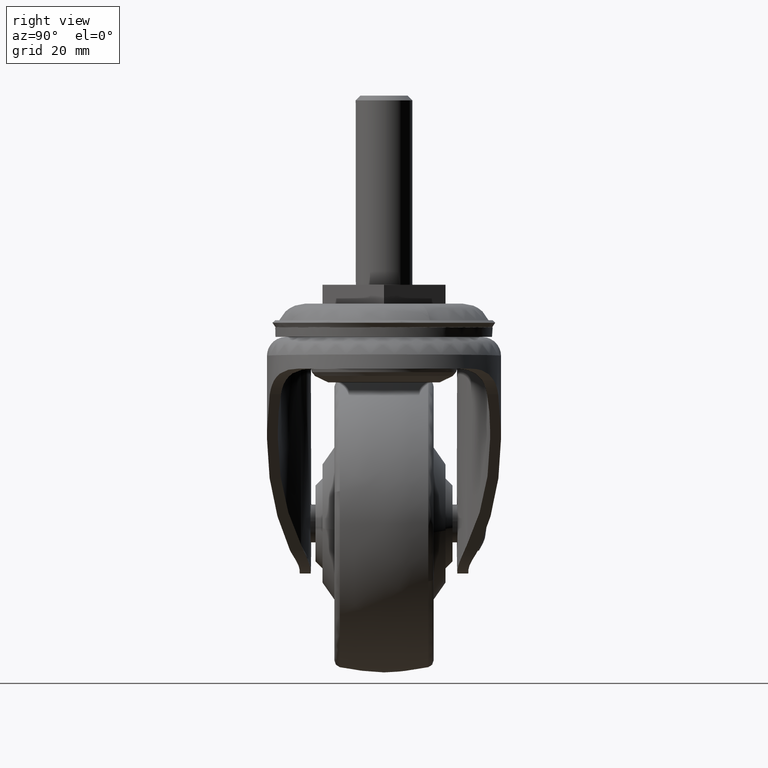
[diagram: clean part render]
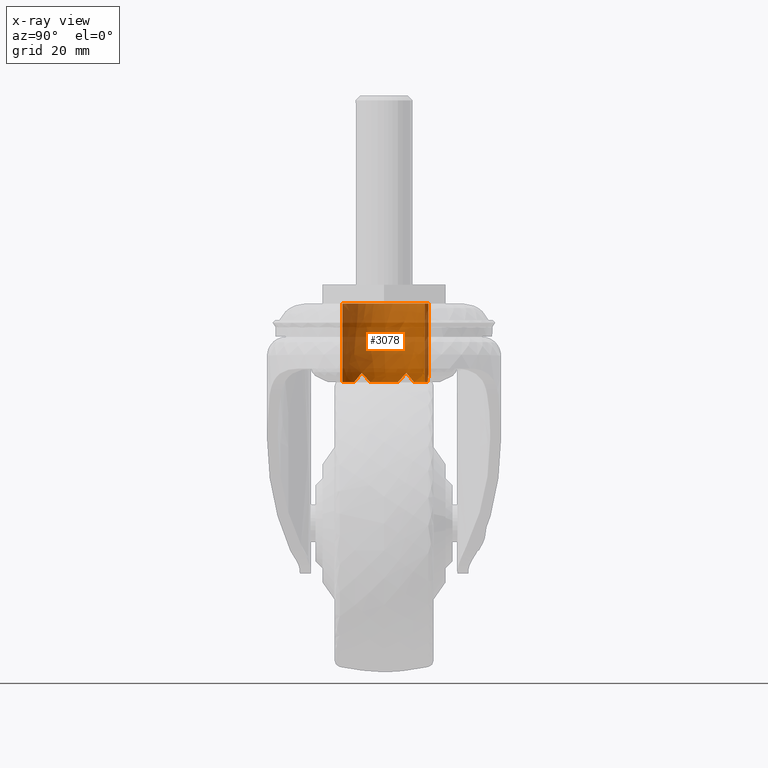
[diagram: x-ray — body ghosted, one internal face saturated and labeled with its STEP entity id]
A machine part, right view, then the same camera in x-ray: the body is ghosted and one INTERNAL B-rep face — a face not visible from any outside direction — is saturated and labeled: STEP entity #3078.
In plain terms, the highlighted face is a freeform B-spline surface patch.
Its self-contained STEP definition (entity closure, byte-faithful):
#2854=CARTESIAN_POINT('',(-3.289884745717890,-8.859956596612092,0.416607074999996));
#2855=CARTESIAN_POINT('',(-3.355442968463488,-8.834500151078300,0.416607074999996));
#2856=CARTESIAN_POINT('',(-3.672747622179301,-8.711289845846569,0.416607074999996));
#2857=CARTESIAN_POINT('',(-3.918851143101457,-8.599134009783331,0.416607074999996));
#2858=CARTESIAN_POINT('',(-12.517985152884787,-4.680282866681875,0.416607074999995));
#2859=CARTESIAN_POINT('',(-8.599134009783331,3.918851143101457,0.416607074999996));
#2860=CARTESIAN_POINT('',(-4.680282866681875,12.517985152884787,0.416607074999995));
#2861=CARTESIAN_POINT('',(3.980687603132299,8.570953511398090,0.416607074999996));
#2862=CARTESIAN_POINT('',(4.042156783265034,8.542940392105534,0.416607074999995));
#2863=CARTESIAN_POINT('',(-3.289884745717890,-8.859956596612092,-17.091305251874804));
#2864=CARTESIAN_POINT('',(-3.355442968463488,-8.834500151078300,-17.091305251874807));
#2865=CARTESIAN_POINT('',(-3.672747622179301,-8.711289845846569,-17.091305251874807));
#2866=CARTESIAN_POINT('',(-3.918851143101457,-8.599134009783331,-17.091305251874800));
#2867=CARTESIAN_POINT('',(-12.517985152884787,-4.680282866681875,-17.091305251874807));
#2868=CARTESIAN_POINT('',(-8.599134009783331,3.918851143101457,-17.091305251874800));
#2869=CARTESIAN_POINT('',(-4.680282866681875,12.517985152884787,-17.091305251874807));
#2870=CARTESIAN_POINT('',(3.980687603132299,8.570953511398090,-17.091305251874807));
#2871=CARTESIAN_POINT('',(4.042156783265034,8.542940392105534,-17.091305251874797));
#2879=(BOUNDED_SURFACE()B_SPLINE_SURFACE(2,1,((#2854,#2863),(#2855,#2864),(#2856,#2865),(#2857,#2866),(#2858,#2867),(#2859,#2868),(#2860,#2869),(#2861,#2870),(#2862,#2871)),.UNSPECIFIED.,.F.,.F.,.U.)B_SPLINE_SURFACE_WITH_KNOTS((3,1,2,2,1,3),(2,2),(0.0,0.159723694867997,0.786014601176117,16.443287258879110,32.100559916582093,32.260264191246883),(0.0,17.507912326874798),.UNSPECIFIED.)GEOMETRIC_REPRESENTATION_ITEM()RATIONAL_B_SPLINE_SURFACE(((0.972008109200590,0.972008109200590),(0.974756954997858,0.974756954997858),(0.988284271247462,0.988284271247462),(1.0,1.0),(0.707106781186548,0.707106781186548),(1.0,1.0),(0.707106781186548,0.707106781186548),(1.002987512582009,1.002987512582009),(1.005975025164019,1.005975025164019)))REPRESENTATION_ITEM('')SURFACE());
#2880=CARTESIAN_POINT('',(-3.420632478422015,-8.809186877775067,-16.664282999999799));
#2881=VERTEX_POINT('',#2880);
#2882=CARTESIAN_POINT('',(-6.998554556918350,-6.350018434133670,-16.664282999999799));
#2883=VERTEX_POINT('',#2882);
#2884=CARTESIAN_POINT('',(-3.420632478422015,-8.809186877775067,-16.664282999999806));
#2885=CARTESIAN_POINT('',(-5.499803752581275,-8.001838720984425,-16.664282999999799));
#2886=CARTESIAN_POINT('',(-6.998554556918348,-6.350018434133669,-16.664282999999799));
#2894=(BOUNDED_CURVE()B_SPLINE_CURVE(2,(#2884,#2885,#2886),.UNSPECIFIED.,.F.,.U.)B_SPLINE_CURVE_WITH_KNOTS((3,3),(0.254656128167153,1.0),.UNSPECIFIED.)CURVE()GEOMETRIC_REPRESENTATION_ITEM()RATIONAL_B_SPLINE_CURVE((0.981865137063550,0.964393429156854,1.0))REPRESENTATION_ITEM(''));
#2895=EDGE_CURVE('',#2881,#2883,#2894,.T.);
#2896=ORIENTED_EDGE('',*,*,#2895,.F.);
#2897=CARTESIAN_POINT('',(-3.420616670673008,-8.809193015936607,-4.543085E-016));
#2898=VERTEX_POINT('',#2897);
#2899=CARTESIAN_POINT('',(-3.420616670673008,-8.809193015936607,-4.543085E-016));
#2900=CARTESIAN_POINT('',(-3.420632478422015,-8.809186877775067,-16.664282999999799));
#2901=QUASI_UNIFORM_CURVE('',1,(#2899,#2900),.UNSPECIFIED.,.F.,.U.);
#2902=EDGE_CURVE('',#2898,#2881,#2901,.T.);
#2903=ORIENTED_EDGE('',*,*,#2902,.F.);
#2904=CARTESIAN_POINT('',(-9.449999999999999,0.0,0.0));
#2905=VERTEX_POINT('',#2904);
#2906=CARTESIAN_POINT('',(-3.420616670673007,-8.809193015936607,-4.543085E-016));
#2907=CARTESIAN_POINT('',(-9.449999999999999,-6.467978662621949,0.0));
#2908=CARTESIAN_POINT('',(-9.449999999999999,0.0,0.0));
#2916=(BOUNDED_CURVE()B_SPLINE_CURVE(2,(#2906,#2907,#2908),.UNSPECIFIED.,.F.,.U.)B_SPLINE_CURVE_WITH_KNOTS((3,3),(0.311464068191999,0.500000000000000),.UNSPECIFIED.)CURVE()GEOMETRIC_REPRESENTATION_ITEM()RATIONAL_B_SPLINE_CURVE((0.891388770783423,0.779116416283044,1.0))REPRESENTATION_ITEM(''));
#2917=EDGE_CURVE('',#2898,#2905,#2916,.T.);
#2918=ORIENTED_EDGE('',*,*,#2917,.T.);
#2919=CARTESIAN_POINT('',(3.918851143120628,8.599134009774595,5.273559E-016));
#2920=VERTEX_POINT('',#2919);
#2921=CARTESIAN_POINT('',(-9.449999999999999,0.0,0.0));
#2922=CARTESIAN_POINT('',(-9.449999999999999,9.449999999999999,0.0));
#2923=CARTESIAN_POINT('',(0.0,9.449999999999999,0.0));
#2924=CARTESIAN_POINT('',(2.051796129533627,9.449999999999999,0.0));
#2925=CARTESIAN_POINT('',(3.918851143120629,8.599134009774595,5.273559E-016));
#2933=(BOUNDED_CURVE()B_SPLINE_CURVE(2,(#2921,#2922,#2923,#2924,#2925),.UNSPECIFIED.,.F.,.U.)B_SPLINE_CURVE_WITH_KNOTS((3,2,3),(0.500000000000000,0.750000000000000,0.820429883916162),.UNSPECIFIED.)CURVE()GEOMETRIC_REPRESENTATION_ITEM()RATIONAL_B_SPLINE_CURVE((1.0,0.707106781186547,1.0,0.917486258396550,0.881463982734053))REPRESENTATION_ITEM(''));
#2934=EDGE_CURVE('',#2905,#2920,#2933,.T.);
#2935=ORIENTED_EDGE('',*,*,#2934,.T.);
#2936=CARTESIAN_POINT('',(3.918851143101998,8.599134009783086,-16.664282999999799));
#2937=VERTEX_POINT('',#2936);
#2938=CARTESIAN_POINT('',(3.918851143120628,8.599134009774595,5.273559E-016));
#2939=CARTESIAN_POINT('',(3.918851143101998,8.599134009783086,-16.664282999999799));
#2940=QUASI_UNIFORM_CURVE('',1,(#2938,#2939),.UNSPECIFIED.,.F.,.U.);
#2941=EDGE_CURVE('',#2920,#2937,#2940,.T.);
#2942=ORIENTED_EDGE('',*,*,#2941,.T.);
#2943=CARTESIAN_POINT('',(2.0,9.235935253129490,-16.664282999999799));
#2944=VERTEX_POINT('',#2943);
#2945=CARTESIAN_POINT('',(1.999999999999999,9.235935253129485,-16.664282999999799));
#2946=CARTESIAN_POINT('',(2.993681866710879,9.020757939846742,-16.664282999999802));
#2947=CARTESIAN_POINT('',(3.918851143101997,8.599134009783086,-16.664282999999802));
#2955=(BOUNDED_CURVE()B_SPLINE_CURVE(2,(#2945,#2946,#2947),.UNSPECIFIED.,.F.,.U.)B_SPLINE_CURVE_WITH_KNOTS((3,3),(0.0,0.346470346042603),.UNSPECIFIED.)CURVE()GEOMETRIC_REPRESENTATION_ITEM()RATIONAL_B_SPLINE_CURVE((1.0,0.983448417049329,0.978366099443602))REPRESENTATION_ITEM(''));
#2956=EDGE_CURVE('',#2944,#2937,#2955,.T.);
#2957=ORIENTED_EDGE('',*,*,#2956,.F.);
#2958=CARTESIAN_POINT('',(0.0,9.449999999999740,-14.664282999999800));
#2959=VERTEX_POINT('',#2958);
#2960=CARTESIAN_POINT('',(1.999999999999970,9.235935253129492,-16.664282999999770));
#2961=CARTESIAN_POINT('',(1.011455928963173,9.449999999999999,-15.675738928962970));
#2962=CARTESIAN_POINT('',(0.0,9.449999999999740,-14.664282999999800));
#2970=(BOUNDED_CURVE()B_SPLINE_CURVE(2,(#2960,#2961,#2962),.UNSPECIFIED.,.F.,.U.)CURVE()GEOMETRIC_REPRESENTATION_ITEM()QUASI_UNIFORM_CURVE()RATIONAL_B_SPLINE_CURVE((1.0,0.994320784715322,1.0))REPRESENTATION_ITEM(''));
#2971=EDGE_CURVE('',#2944,#2959,#2970,.T.);
#2972=ORIENTED_EDGE('',*,*,#2971,.T.);
#2973=CARTESIAN_POINT('',(-2.0,9.235935253129490,-16.664282999999799));
#2974=VERTEX_POINT('',#2973);
#2975=CARTESIAN_POINT('',(0.0,9.449999999999740,-14.664282999999800));
#2976=CARTESIAN_POINT('',(-1.011455922575914,9.449999762647993,-15.675738922575718));
#2977=CARTESIAN_POINT('',(-2.0,9.235935253129490,-16.664282999999799));
#2985=(BOUNDED_CURVE()B_SPLINE_CURVE(2,(#2975,#2976,#2977),.UNSPECIFIED.,.F.,.U.)CURVE()GEOMETRIC_REPRESENTATION_ITEM()QUASI_UNIFORM_CURVE()RATIONAL_B_SPLINE_CURVE((1.0,0.994320797202264,1.0))REPRESENTATION_ITEM(''));
#2986=EDGE_CURVE('',#2959,#2974,#2985,.T.);
#2987=ORIENTED_EDGE('',*,*,#2986,.T.);
#2988=CARTESIAN_POINT('',(-6.998554556918450,6.350018434133560,-16.664282999999799));
#2989=VERTEX_POINT('',#2988);
#2990=CARTESIAN_POINT('',(-6.998554556918450,6.350018434133559,-16.664282999999799));
#2991=CARTESIAN_POINT('',(-4.962046928489310,8.594517389684491,-16.664282999999806));
#2992=CARTESIAN_POINT('',(-2.0,9.235935253129485,-16.664282999999799));
#3000=(BOUNDED_CURVE()B_SPLINE_CURVE(2,(#2990,#2991,#2992),.UNSPECIFIED.,.F.,.U.)CURVE()GEOMETRIC_REPRESENTATION_ITEM()QUASI_UNIFORM_CURVE()RATIONAL_B_SPLINE_CURVE((1.0,0.952227995441098,1.0))REPRESENTATION_ITEM(''));
#3001=EDGE_CURVE('',#2989,#2974,#3000,.T.);
#3002=ORIENTED_EDGE('',*,*,#3001,.F.);
#3003=CARTESIAN_POINT('',(-8.183940065762730,4.724999999999870,-14.664282999999800));
#3004=VERTEX_POINT('',#3003);
#3005=CARTESIAN_POINT('',(-8.183940065762730,4.724999999999870,-14.664282999999800));
#3006=CARTESIAN_POINT('',(-7.678212101281375,5.600946529290468,-15.675738928963034));
#3007=CARTESIAN_POINT('',(-6.998554556918454,6.350018434133553,-16.664282999999809));
#3015=(BOUNDED_CURVE()B_SPLINE_CURVE(2,(#3005,#3006,#3007),.UNSPECIFIED.,.F.,.U.)CURVE()GEOMETRIC_REPRESENTATION_ITEM()QUASI_UNIFORM_CURVE()RATIONAL_B_SPLINE_CURVE((1.0,0.994320784715397,1.0))REPRESENTATION_ITEM(''));
#3016=EDGE_CURVE('',#3004,#2989,#3015,.T.);
#3017=ORIENTED_EDGE('',*,*,#3016,.F.);
#3018=CARTESIAN_POINT('',(-8.998554556918389,2.885916818995875,-16.664282999999799));
#3019=VERTEX_POINT('',#3018);
#3020=CARTESIAN_POINT('',(-8.998554556918391,2.885916818995872,-16.664282999999799));
#3021=CARTESIAN_POINT('',(-8.689668030244533,3.849053470709501,-15.675738928962980));
#3022=CARTESIAN_POINT('',(-8.183940065762730,4.724999999999870,-14.664282999999800));
#3030=(BOUNDED_CURVE()B_SPLINE_CURVE(2,(#3020,#3021,#3022),.UNSPECIFIED.,.F.,.U.)CURVE()GEOMETRIC_REPRESENTATION_ITEM()QUASI_UNIFORM_CURVE()RATIONAL_B_SPLINE_CURVE((1.0,0.994320784715342,1.0))REPRESENTATION_ITEM(''));
#3031=EDGE_CURVE('',#3019,#3004,#3030,.T.);
#3032=ORIENTED_EDGE('',*,*,#3031,.F.);
#3033=CARTESIAN_POINT('',(-8.998554556918389,-2.885916818995865,-16.664282999999799));
#3034=VERTEX_POINT('',#3033);
#3035=CARTESIAN_POINT('',(-8.998554556918395,-2.885916818995867,-16.664282999999799));
#3036=CARTESIAN_POINT('',(-9.924093856978534,1.734723E-015,-16.664282999999806));
#3037=CARTESIAN_POINT('',(-8.998554556918393,2.885916818995870,-16.664282999999799));
#3045=(BOUNDED_CURVE()B_SPLINE_CURVE(2,(#3035,#3036,#3037),.UNSPECIFIED.,.F.,.U.)CURVE()GEOMETRIC_REPRESENTATION_ITEM()QUASI_UNIFORM_CURVE()RATIONAL_B_SPLINE_CURVE((1.0,0.952227995441100,1.0))REPRESENTATION_ITEM(''));
#3046=EDGE_CURVE('',#3034,#3019,#3045,.T.);
#3047=ORIENTED_EDGE('',*,*,#3046,.F.);
#3048=CARTESIAN_POINT('',(-8.183940065762840,-4.725000000000000,-14.664282999999800));
#3049=VERTEX_POINT('',#3048);
#3050=CARTESIAN_POINT('',(-8.183940065762840,-4.725000000000000,-14.664282999999800));
#3051=CARTESIAN_POINT('',(-8.689668030244544,-3.849053470709482,-15.675738928962987));
#3052=CARTESIAN_POINT('',(-8.998554556918400,-2.885916818995851,-16.664282999999809));
#3060=(BOUNDED_CURVE()B_SPLINE_CURVE(2,(#3050,#3051,#3052),.UNSPECIFIED.,.F.,.U.)CURVE()GEOMETRIC_REPRESENTATION_ITEM()QUASI_UNIFORM_CURVE()RATIONAL_B_SPLINE_CURVE((1.0,0.994320784715339,1.0))REPRESENTATION_ITEM(''));
#3061=EDGE_CURVE('',#3049,#3034,#3060,.T.);
#3062=ORIENTED_EDGE('',*,*,#3061,.F.);
#3063=CARTESIAN_POINT('',(-6.998554556918357,-6.350018434133660,-16.664282999999781));
#3064=CARTESIAN_POINT('',(-7.678212101281343,-5.600946529290527,-15.675738928962931));
#3065=CARTESIAN_POINT('',(-8.183940065762840,-4.725000000000000,-14.664282999999800));
#3073=(BOUNDED_CURVE()B_SPLINE_CURVE(2,(#3063,#3064,#3065),.UNSPECIFIED.,.F.,.U.)CURVE()GEOMETRIC_REPRESENTATION_ITEM()QUASI_UNIFORM_CURVE()RATIONAL_B_SPLINE_CURVE((1.0,0.994320784715231,1.0))REPRESENTATION_ITEM(''));
#3074=EDGE_CURVE('',#2883,#3049,#3073,.T.);
#3075=ORIENTED_EDGE('',*,*,#3074,.F.);
#3076=EDGE_LOOP('',(#2896,#2903,#2918,#2935,#2942,#2957,#2972,#2987,#3002,#3017,#3032,#3047,#3062,#3075));
#3077=FACE_OUTER_BOUND('',#3076,.T.);
#3078=ADVANCED_FACE('',(#3077),#2879,.T.);